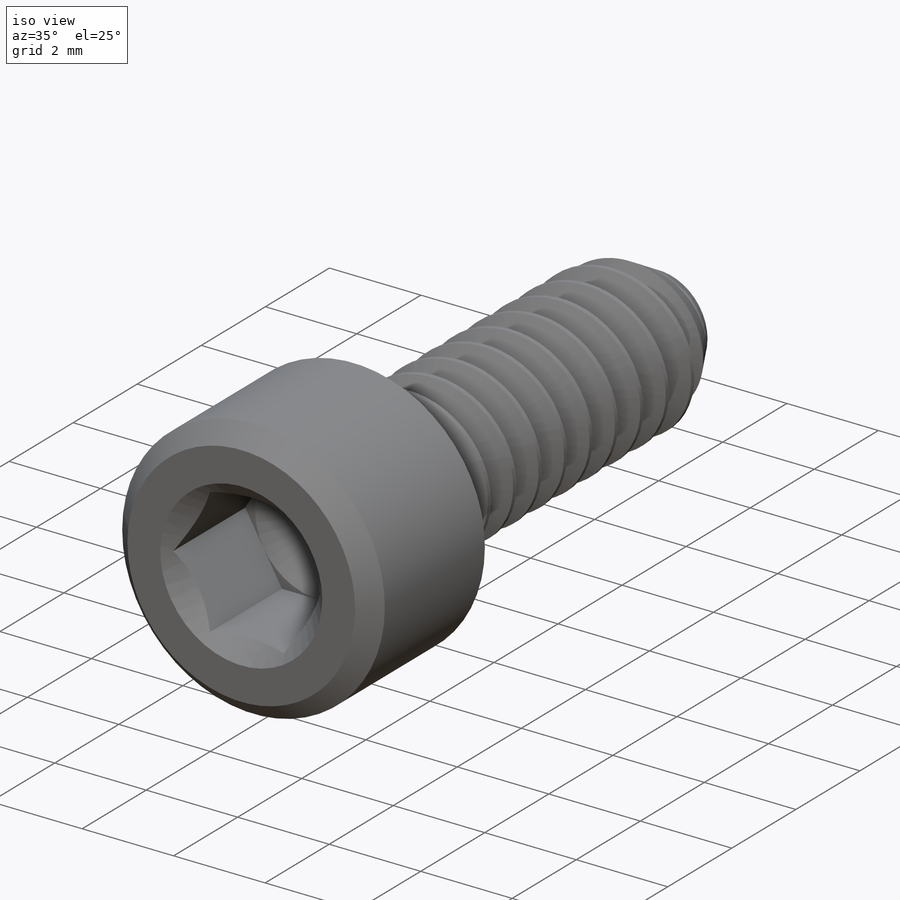
[diagram: iso view]
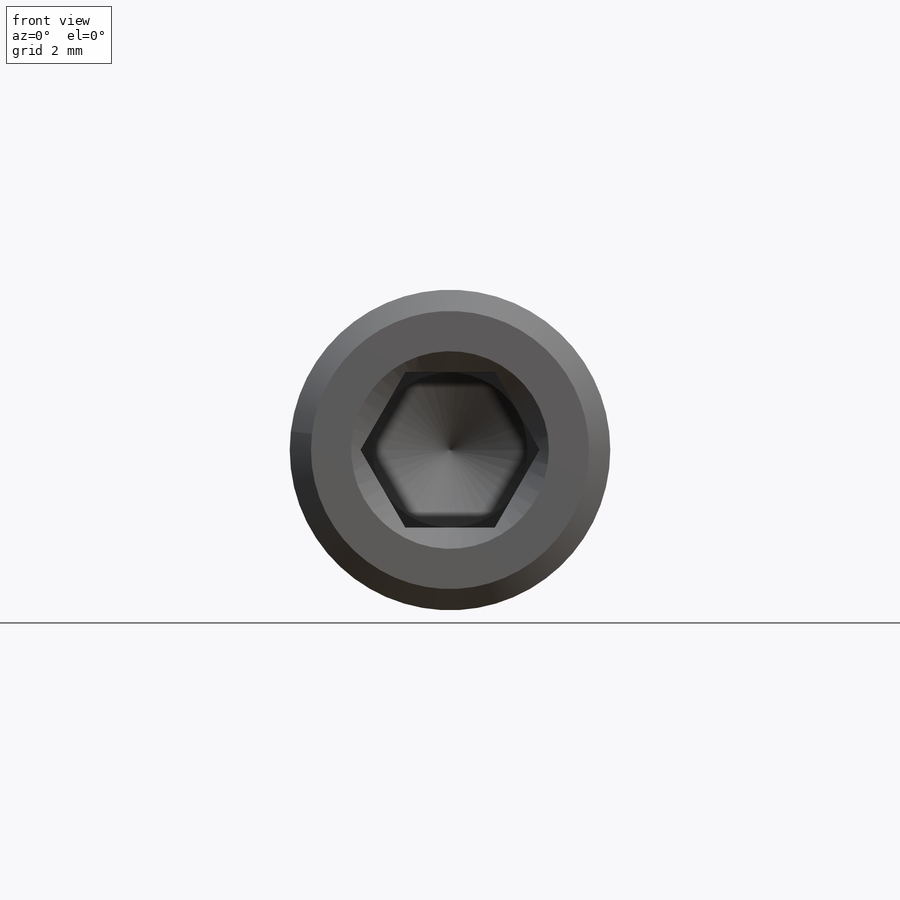
[diagram: front view]
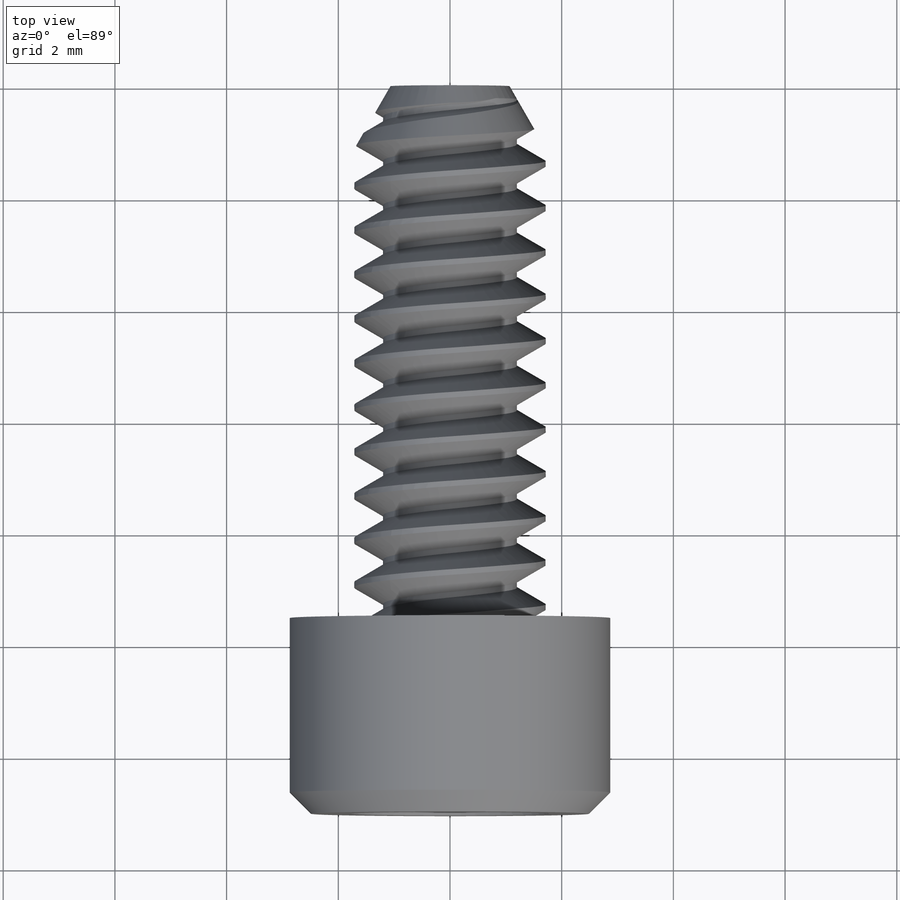
[diagram: top view]
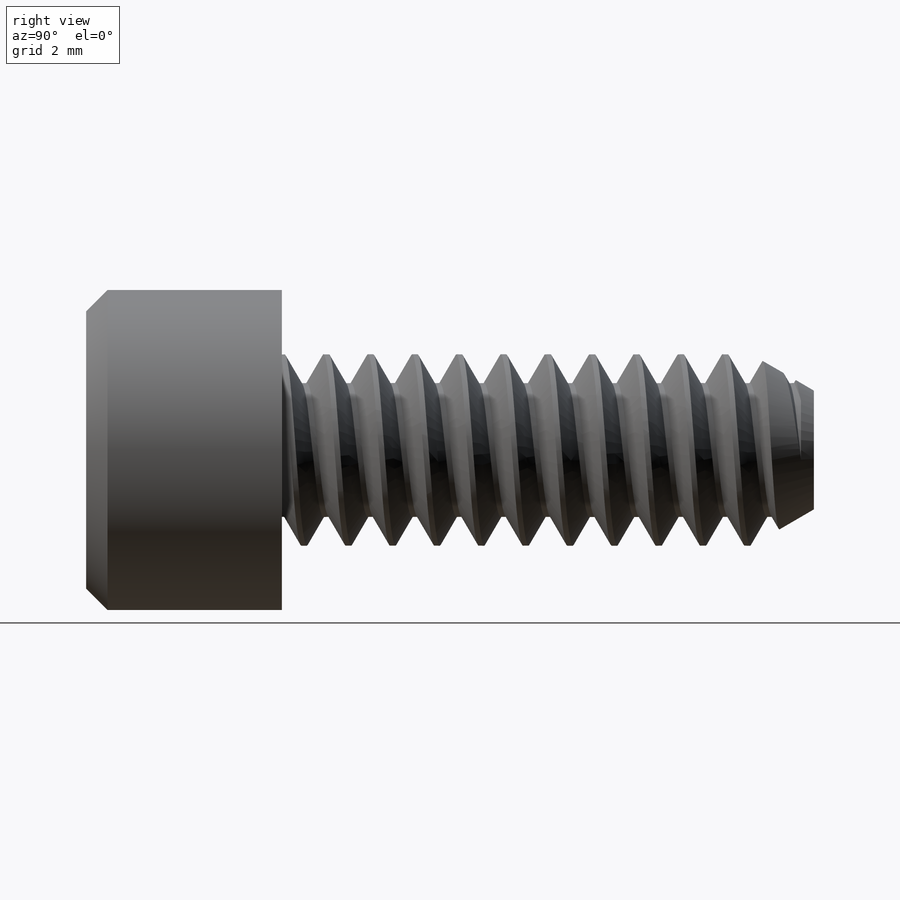
[diagram: right view]
SOLIDWORKS PART (.sldprt)
format: sldprt  version: not decoded by parser v0  size: 944,128 bytes
history: native  units: mm
features: sketch x10, cut_revolve x3, revolve x2, cut_extrude x2, material x1, helix x1, sweep x1, extrude x1, chamfer x1 + 1 further entry (+13 scaffold rows collapsed)
feature tree (36):
  scaffold x13  (default folders/planes/origin — collapsed)
  material  "1060 Alloy"
  "Design Table"
  sketch  "Sketch2"  dims[screw dia=4.826mm D1=3.429mm]
  helix  "Helix/Spiral1"  Pitch=50.8mm TPI LENGTH=50.8mm PITCH=0.79375mm TPI=64
  sketch  "Sketch3"  dims[c1.D1=~0.922257mm c2.D1=60.0deg c2.D2=~4.178336mm c3.D2=30.0deg c3.pitch*.125=~0.099219mm c3.PITCH DIA=0.6858mm c3.D5=~0.888681mm c3.pitch*.5=~0.396875mm c3.1/2pitch=~0.396875mm c3.D4=~0.515556mm c3.D3=~0.687408mm]
  sweep  "Sweep1"
  sketch  "Sketch4"  dims[D2=0.508mm D1=0.0mm]
  revolve  "Revolve1"  Angle=360deg
  sketch  "Sketch5"
  revolve  "Revolve2"  Angle=360deg
  sketch  "Sketch7"  dims[c1.D1=~4.506114mm c2.D1=30.0deg c2.D2=1.27mm c2.D3=3.048mm c2.D4=0.762mm c3.D2=1.0668mm]
  cut_revolve  "Cut-Revolve1"  Angle=360deg
  sketch  "Sketch10"  dims[SCREW LENGTH=12.7mm D1=76.2mm D2=9.525mm D3=19.05mm]
  cut_extrude  "Cut-Extrude3"  [1 undecoded]
  sketch  "Sketch17"  dims[head dia=7.9248mm D1=5.7404mm]
  extrude  "Extrude2"  Depth=12.7mm head height=12.7mm
  sketch  "Sketch18"  dims[c1.D1=~21.447646mm c2.D1=3.0deg c2.D2=0.254mm c2.D3=0.254mm c2.D4=~2.861733mm c3.D2=0.4572mm c3.D4=~3.092006mm c4.D4=~5.39133deg c5.D4=~2.252133mm c5.D5=4.5466mm c6.D5=3.0deg c6.D4=~2.252133mm c6.D1=0.381mm c6.D2=2.5654mm c7.D4=2.159mm c7.D2=3.5052mm]
  cut_revolve  "Cut-Revolve3"  Angle=360deg
  sketch  "Sketch19"  dims[c1.phillips dia=2.413mm c1.D4=~4.922474mm c1.D1=~7.172415mm c2.D1=45.0deg c2.phillips width=0.3937mm c2.D4=~3.290086mm c3.D4=22.5deg c3.D5=~3.290086mm c4.D5=22.5deg]
  cut_extrude  "Cut-Extrude4"  Depth=2.413mm depth=2.413mm
  sketch  "Sketch20"  dims[c1.D1=~1.145679mm c2.D1=59.0deg c2.D2=~0.347678mm c3.D2=45.0deg c3.D3=0.381mm]
  cut_revolve  "Cut-Revolve5"  Angle=360deg
  chamfer  "Chamfer1"  Distance=0.381mm Angle=45deg
decode coverage: 18 of 21 modeling features carry decoded parameters; 1 rows unclassified (native names shown)
note: ~ marks probable driven/reference dimensions
note: 1 parameter value undecoded
note: suppression state not decoded; provenance and decode notes live in map.json
